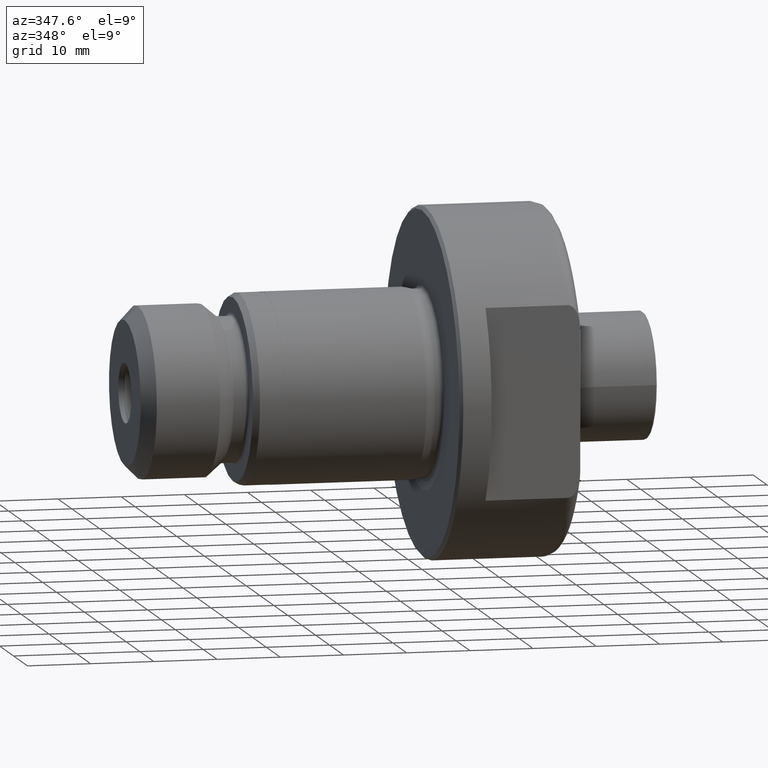
[diagram: clean part render]
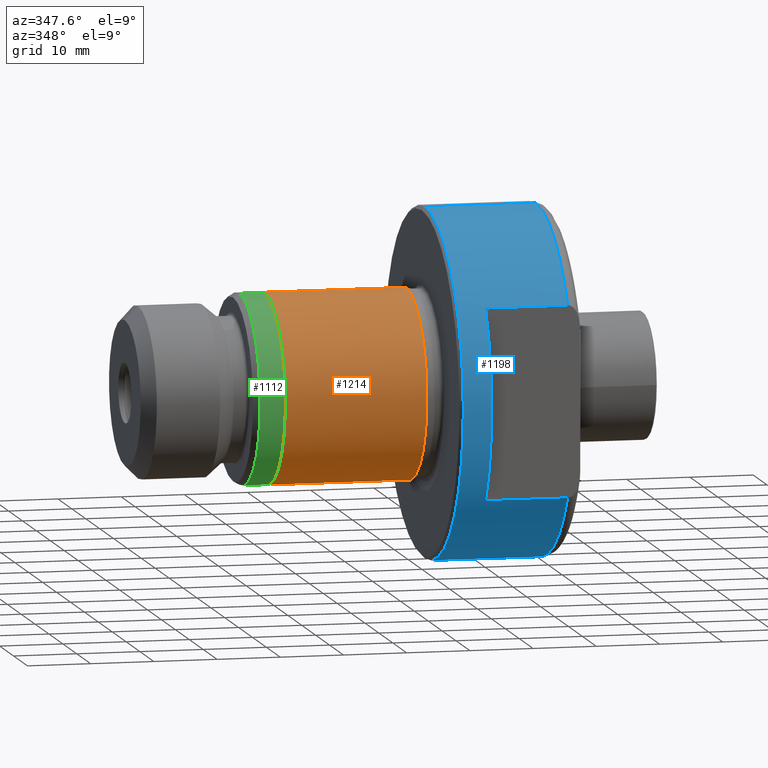
[diagram: same view with three faces highlighted in distinct colors, each labeled with its STEP entity id]
A machine part, auxiliary view with three faces highlighted in distinct colors.
Their STEP definitions:

[orange] entity #1214 — the highlighted cylindrical surface (partial cylindrical patch) has radius 15 mm, axis along (1, -0, -0).
#268 = DIRECTION ( 'NONE',  ( 0.0000000000000000000, 0.0000000000000000000, -1.000000000000000000 ) ) ;
#299 = CIRCLE ( 'NONE', #1165, 14.99999999999998900 ) ;
#311 = CARTESIAN_POINT ( 'NONE',  ( -24.90000000000000600, 0.0000000000000000000, -14.99999999999998900 ) ) ;
#314 = CIRCLE ( 'NONE', #1033, 14.99999999999998900 ) ;
#383 = CYLINDRICAL_SURFACE ( 'NONE', #1421, 14.99999999999998900 ) ;
#392 = EDGE_CURVE ( 'NONE', #2026, #2038, #824, .T. ) ;
#397 = EDGE_CURVE ( 'NONE', #1899, #1721, #817, .T. ) ;
#418 = FACE_OUTER_BOUND ( 'NONE', #1470, .T. ) ;
#559 = DIRECTION ( 'NONE',  ( 1.000000000000000000, -0.0000000000000000000, -0.0000000000000000000 ) ) ;
#562 = CARTESIAN_POINT ( 'NONE',  ( -24.90000000000000600, 0.0000000000000000000, 0.0000000000000000000 ) ) ;
#587 = CARTESIAN_POINT ( 'NONE',  ( -2.500000000000002200, 0.0000000000000000000, 0.0000000000000000000 ) ) ;
#591 = DIRECTION ( 'NONE',  ( 1.000000000000000000, -0.0000000000000000000, -0.0000000000000000000 ) ) ;
#608 = DIRECTION ( 'NONE',  ( 0.0000000000000000000, 0.0000000000000000000, -1.000000000000000000 ) ) ;
#808 = VECTOR ( 'NONE', #1576, 1000.000000000000000 ) ;
#810 = VECTOR ( 'NONE', #1246, 1000.000000000000000 ) ;
#817 = LINE ( 'NONE', #1890, #808 ) ;
#824 = LINE ( 'NONE', #1239, #810 ) ;
#899 = CARTESIAN_POINT ( 'NONE',  ( -2.500000000000002200, 1.836970198721028400E-015, 14.99999999999998900 ) ) ;
#1029 = CARTESIAN_POINT ( 'NONE',  ( -24.90000000000000600, 1.836970198721028400E-015, 14.99999999999998900 ) ) ;
#1033 = AXIS2_PLACEMENT_3D ( 'NONE', #562, #559, #268 ) ;
#1165 = AXIS2_PLACEMENT_3D ( 'NONE', #587, #591, #608 ) ;
#1206 = DIRECTION ( 'NONE',  ( 0.0000000000000000000, 0.0000000000000000000, -1.000000000000000000 ) ) ;
#1209 = CARTESIAN_POINT ( 'NONE',  ( 55.15932539682538800, 0.0000000000000000000, 0.0000000000000000000 ) ) ;
#1214 = ADVANCED_FACE ( 'NONE', ( #418 ), #383, .T. ) ;
#1217 = DIRECTION ( 'NONE',  ( 1.000000000000000000, -0.0000000000000000000, -0.0000000000000000000 ) ) ;
#1239 = CARTESIAN_POINT ( 'NONE',  ( 55.15932539682538800, 1.836970198721028400E-015, 14.99999999999998900 ) ) ;
#1246 = DIRECTION ( 'NONE',  ( 1.000000000000000000, -0.0000000000000000000, -0.0000000000000000000 ) ) ;
#1316 = EDGE_CURVE ( 'NONE', #2026, #1899, #314, .T. ) ;
#1319 = EDGE_CURVE ( 'NONE', #2038, #1721, #299, .T. ) ;
#1360 = ORIENTED_EDGE ( 'NONE', *, *, #1319, .F. ) ;
#1421 = AXIS2_PLACEMENT_3D ( 'NONE', #1209, #1217, #1206 ) ;
#1470 = EDGE_LOOP ( 'NONE', ( #1928, #1908, #1894, #1360 ) ) ;
#1576 = DIRECTION ( 'NONE',  ( 1.000000000000000000, -0.0000000000000000000, -0.0000000000000000000 ) ) ;
#1721 = VERTEX_POINT ( 'NONE', #2110 ) ;
#1890 = CARTESIAN_POINT ( 'NONE',  ( 55.15932539682538800, 0.0000000000000000000, -14.99999999999998900 ) ) ;
#1894 = ORIENTED_EDGE ( 'NONE', *, *, #397, .T. ) ;
#1899 = VERTEX_POINT ( 'NONE', #311 ) ;
#1908 = ORIENTED_EDGE ( 'NONE', *, *, #1316, .T. ) ;
#1928 = ORIENTED_EDGE ( 'NONE', *, *, #392, .F. ) ;
#2026 = VERTEX_POINT ( 'NONE', #1029 ) ;
#2038 = VERTEX_POINT ( 'NONE', #899 ) ;
#2110 = CARTESIAN_POINT ( 'NONE',  ( -2.500000000000002200, 0.0000000000000000000, -14.99999999999998900 ) ) ;

[blue] entity #1198 — the highlighted cylindrical surface (partial cylindrical patch) has radius 27.5 mm, axis along (1, -0, -0).
#131 = CARTESIAN_POINT ( 'NONE',  ( 18.00000000000189400, -23.00000000000000400, 15.07481343168132400 ) ) ;
#169 = EDGE_CURVE ( 'NONE', #1052, #1527, #941, .T. ) ;
#178 = CIRCLE ( 'NONE', #1127, 27.49999999999999600 ) ;
#187 = LINE ( 'NONE', #1744, #209 ) ;
#193 = CARTESIAN_POINT ( 'NONE',  ( 5.000000000000000000, -23.00000000000000400, -15.07481343168132600 ) ) ;
#195 = EDGE_CURVE ( 'NONE', #1980, #1949, #920, .T. ) ;
#209 = VECTOR ( 'NONE', #1817, 1000.000000000000000 ) ;
#228 = DIRECTION ( 'NONE',  ( -1.577021341797097600E-016, -1.000000000000000000, 0.0000000000000000000 ) ) ;
#263 = VECTOR ( 'NONE', #860, 1000.000000000000000 ) ;
#273 = LINE ( 'NONE', #778, #263 ) ;
#274 = CIRCLE ( 'NONE', #936, 27.49999999999999600 ) ;
#279 = CARTESIAN_POINT ( 'NONE',  ( 0.5000000000000004400, 0.0000000000000000000, -27.49999999999999600 ) ) ;
#281 = CIRCLE ( 'NONE', #907, 27.49999999999999600 ) ;
#398 = CYLINDRICAL_SURFACE ( 'NONE', #1447, 27.49999999999999600 ) ;
#403 = FACE_OUTER_BOUND ( 'NONE', #1411, .T. ) ;
#416 = DIRECTION ( 'NONE',  ( 1.000000000000000000, -0.0000000000000000000, -0.0000000000000000000 ) ) ;
#431 = CARTESIAN_POINT ( 'NONE',  ( 55.15932539682538800, 3.367778697655220900E-015, 27.49999999999999600 ) ) ;
#534 = DIRECTION ( 'NONE',  ( 1.000000000000000000, -0.0000000000000000000, -0.0000000000000000000 ) ) ;
#536 = CARTESIAN_POINT ( 'NONE',  ( 18.00000000000000400, 3.367778697655220900E-015, 27.49999999999999600 ) ) ;
#550 = CIRCLE ( 'NONE', #1813, 27.49999999999999600 ) ;
#557 = CARTESIAN_POINT ( 'NONE',  ( 55.15932539682538800, 0.0000000000000000000, 0.0000000000000000000 ) ) ;
#674 = CARTESIAN_POINT ( 'NONE',  ( 5.000000000000000000, -23.00000000000000400, 15.07481343168132200 ) ) ;
#690 = ORIENTED_EDGE ( 'NONE', *, *, #1349, .T. ) ;
#758 = CARTESIAN_POINT ( 'NONE',  ( 55.15932539682538800, 0.0000000000000000000, -27.49999999999999600 ) ) ;
#778 = CARTESIAN_POINT ( 'NONE',  ( 55.15932539682538800, -23.00000000000000400, -15.07481343168132600 ) ) ;
#790 = DIRECTION ( 'NONE',  ( 1.000000000000000000, -0.0000000000000000000, -0.0000000000000000000 ) ) ;
#807 = CARTESIAN_POINT ( 'NONE',  ( 0.5000000000000004400, 0.0000000000000000000, 0.0000000000000000000 ) ) ;
#821 = DIRECTION ( 'NONE',  ( 0.0000000000000000000, 0.0000000000000000000, -1.000000000000000000 ) ) ;
#860 = DIRECTION ( 'NONE',  ( 1.000000000000000000, -0.0000000000000000000, -0.0000000000000000000 ) ) ;
#905 = VECTOR ( 'NONE', #534, 1000.000000000000000 ) ;
#907 = AXIS2_PLACEMENT_3D ( 'NONE', #807, #790, #821 ) ;
#920 = LINE ( 'NONE', #758, #905 ) ;
#932 = VECTOR ( 'NONE', #416, 1000.000000000000000 ) ;
#936 = AXIS2_PLACEMENT_3D ( 'NONE', #952, #967, #228 ) ;
#941 = LINE ( 'NONE', #431, #932 ) ;
#952 = CARTESIAN_POINT ( 'NONE',  ( 5.000000000000004400, 0.0000000000000000000, 0.0000000000000000000 ) ) ;
#966 = CARTESIAN_POINT ( 'NONE',  ( 18.00000000000000400, 0.0000000000000000000, -27.49999999999999600 ) ) ;
#967 = DIRECTION ( 'NONE',  ( 1.000000000000000000, -1.445602896647337900E-016, -0.0000000000000000000 ) ) ;
#972 = CARTESIAN_POINT ( 'NONE',  ( 18.00000000000000400, -23.00000000000000400, -15.07481343168132200 ) ) ;
#1052 = VERTEX_POINT ( 'NONE', #1102 ) ;
#1086 = EDGE_CURVE ( 'NONE', #1898, #1949, #550, .T. ) ;
#1094 = DIRECTION ( 'NONE',  ( 1.000000000000000000, -0.0000000000000000000, -0.0000000000000000000 ) ) ;
#1102 = CARTESIAN_POINT ( 'NONE',  ( 0.5000000000000004400, 3.367778697655220900E-015, 27.49999999999999600 ) ) ;
#1113 = DIRECTION ( 'NONE',  ( 0.0000000000000000000, 0.0000000000000000000, -1.000000000000000000 ) ) ;
#1127 = AXIS2_PLACEMENT_3D ( 'NONE', #1235, #1307, #1804 ) ;
#1128 = VERTEX_POINT ( 'NONE', #193 ) ;
#1198 = ADVANCED_FACE ( 'NONE', ( #403 ), #398, .T. ) ;
#1235 = CARTESIAN_POINT ( 'NONE',  ( 18.00000000000000400, 0.0000000000000000000, 0.0000000000000000000 ) ) ;
#1307 = DIRECTION ( 'NONE',  ( 1.000000000000000000, -0.0000000000000000000, -0.0000000000000000000 ) ) ;
#1349 = EDGE_CURVE ( 'NONE', #1052, #1980, #281, .T. ) ;
#1359 = EDGE_CURVE ( 'NONE', #1128, #1898, #273, .T. ) ;
#1368 = EDGE_CURVE ( 'NONE', #1604, #1128, #274, .T. ) ;
#1411 = EDGE_LOOP ( 'NONE', ( #1913, #690, #1710, #1782, #1760, #1795, #1846, #1814 ) ) ;
#1425 = EDGE_CURVE ( 'NONE', #1748, #1604, #187, .T. ) ;
#1436 = EDGE_CURVE ( 'NONE', #1527, #1748, #178, .T. ) ;
#1447 = AXIS2_PLACEMENT_3D ( 'NONE', #557, #1094, #1113 ) ;
#1527 = VERTEX_POINT ( 'NONE', #536 ) ;
#1604 = VERTEX_POINT ( 'NONE', #674 ) ;
#1663 = DIRECTION ( 'NONE',  ( 0.0000000000000000000, 0.0000000000000000000, -1.000000000000000000 ) ) ;
#1710 = ORIENTED_EDGE ( 'NONE', *, *, #195, .T. ) ;
#1720 = CARTESIAN_POINT ( 'NONE',  ( 18.00000000000000400, 0.0000000000000000000, 0.0000000000000000000 ) ) ;
#1727 = DIRECTION ( 'NONE',  ( 1.000000000000000000, -0.0000000000000000000, -0.0000000000000000000 ) ) ;
#1744 = CARTESIAN_POINT ( 'NONE',  ( 55.15932539682538800, -23.00000000000000400, 15.07481343168132600 ) ) ;
#1748 = VERTEX_POINT ( 'NONE', #131 ) ;
#1760 = ORIENTED_EDGE ( 'NONE', *, *, #1359, .F. ) ;
#1782 = ORIENTED_EDGE ( 'NONE', *, *, #1086, .F. ) ;
#1795 = ORIENTED_EDGE ( 'NONE', *, *, #1368, .F. ) ;
#1804 = DIRECTION ( 'NONE',  ( 0.0000000000000000000, 0.0000000000000000000, -1.000000000000000000 ) ) ;
#1813 = AXIS2_PLACEMENT_3D ( 'NONE', #1720, #1727, #1663 ) ;
#1814 = ORIENTED_EDGE ( 'NONE', *, *, #1436, .F. ) ;
#1817 = DIRECTION ( 'NONE',  ( -1.000000000000000000, 0.0000000000000000000, 0.0000000000000000000 ) ) ;
#1846 = ORIENTED_EDGE ( 'NONE', *, *, #1425, .F. ) ;
#1898 = VERTEX_POINT ( 'NONE', #972 ) ;
#1913 = ORIENTED_EDGE ( 'NONE', *, *, #169, .F. ) ;
#1949 = VERTEX_POINT ( 'NONE', #966 ) ;
#1980 = VERTEX_POINT ( 'NONE', #279 ) ;

[green] entity #1112 — the highlighted cylindrical surface (partial cylindrical patch) has radius 14.975 mm, axis along (1, -0, -0).
#204 = CARTESIAN_POINT ( 'NONE',  ( 55.15932539682538800, 0.0000000000000000000, 0.0000000000000000000 ) ) ;
#307 = CIRCLE ( 'NONE', #996, 14.97499999999999100 ) ;
#319 = CIRCLE ( 'NONE', #1084, 14.97499999999999300 ) ;
#382 = DIRECTION ( 'NONE',  ( 1.000000000000000000, -0.0000000000000000000, -0.0000000000000000000 ) ) ;
#409 = EDGE_CURVE ( 'NONE', #1597, #1048, #809, .T. ) ;
#413 = EDGE_CURVE ( 'NONE', #1518, #1025, #802, .T. ) ;
#422 = ORIENTED_EDGE ( 'NONE', *, *, #1310, .F. ) ;
#444 = CARTESIAN_POINT ( 'NONE',  ( -28.89999999999999500, 0.0000000000000000000, -14.97499999999999300 ) ) ;
#479 = DIRECTION ( 'NONE',  ( 1.000000000000000000, -0.0000000000000000000, -0.0000000000000000000 ) ) ;
#510 = CARTESIAN_POINT ( 'NONE',  ( -24.90000000000000600, 0.0000000000000000000, 0.0000000000000000000 ) ) ;
#511 = DIRECTION ( 'NONE',  ( 0.0000000000000000000, 0.0000000000000000000, -1.000000000000000000 ) ) ;
#517 = DIRECTION ( 'NONE',  ( 0.0000000000000000000, 0.0000000000000000000, -1.000000000000000000 ) ) ;
#524 = CYLINDRICAL_SURFACE ( 'NONE', #1724, 14.97499999999999300 ) ;
#568 = FACE_OUTER_BOUND ( 'NONE', #1459, .T. ) ;
#655 = CARTESIAN_POINT ( 'NONE',  ( -24.90000000000000600, 0.0000000000000000000, -14.97499999999999100 ) ) ;
#789 = VECTOR ( 'NONE', #1534, 1000.000000000000000 ) ;
#796 = VECTOR ( 'NONE', #1588, 1000.000000000000000 ) ;
#802 = LINE ( 'NONE', #1659, #789 ) ;
#809 = LINE ( 'NONE', #1599, #796 ) ;
#996 = AXIS2_PLACEMENT_3D ( 'NONE', #510, #479, #511 ) ;
#1025 = VERTEX_POINT ( 'NONE', #655 ) ;
#1048 = VERTEX_POINT ( 'NONE', #1119 ) ;
#1084 = AXIS2_PLACEMENT_3D ( 'NONE', #1095, #382, #1601 ) ;
#1095 = CARTESIAN_POINT ( 'NONE',  ( -28.89999999999999500, 0.0000000000000000000, 0.0000000000000000000 ) ) ;
#1112 = ADVANCED_FACE ( 'NONE', ( #568 ), #524, .T. ) ;
#1119 = CARTESIAN_POINT ( 'NONE',  ( -24.90000000000000600, 1.833908581723160300E-015, 14.97499999999999100 ) ) ;
#1178 = CARTESIAN_POINT ( 'NONE',  ( -28.89999999999999500, 1.833908581723160700E-015, 14.97499999999999300 ) ) ;
#1308 = EDGE_CURVE ( 'NONE', #1597, #1518, #319, .T. ) ;
#1310 = EDGE_CURVE ( 'NONE', #1048, #1025, #307, .T. ) ;
#1403 = ORIENTED_EDGE ( 'NONE', *, *, #1308, .T. ) ;
#1459 = EDGE_LOOP ( 'NONE', ( #1490, #1403, #1926, #422 ) ) ;
#1490 = ORIENTED_EDGE ( 'NONE', *, *, #409, .F. ) ;
#1518 = VERTEX_POINT ( 'NONE', #444 ) ;
#1534 = DIRECTION ( 'NONE',  ( 1.000000000000000000, -0.0000000000000000000, -0.0000000000000000000 ) ) ;
#1588 = DIRECTION ( 'NONE',  ( 1.000000000000000000, -0.0000000000000000000, -0.0000000000000000000 ) ) ;
#1597 = VERTEX_POINT ( 'NONE', #1178 ) ;
#1599 = CARTESIAN_POINT ( 'NONE',  ( 55.15932539682538800, 1.833908581723160700E-015, 14.97499999999999300 ) ) ;
#1601 = DIRECTION ( 'NONE',  ( 0.0000000000000000000, 0.0000000000000000000, -1.000000000000000000 ) ) ;
#1659 = CARTESIAN_POINT ( 'NONE',  ( 55.15932539682538800, 0.0000000000000000000, -14.97499999999999300 ) ) ;
#1724 = AXIS2_PLACEMENT_3D ( 'NONE', #204, #1729, #517 ) ;
#1729 = DIRECTION ( 'NONE',  ( 1.000000000000000000, -0.0000000000000000000, -0.0000000000000000000 ) ) ;
#1926 = ORIENTED_EDGE ( 'NONE', *, *, #413, .T. ) ;